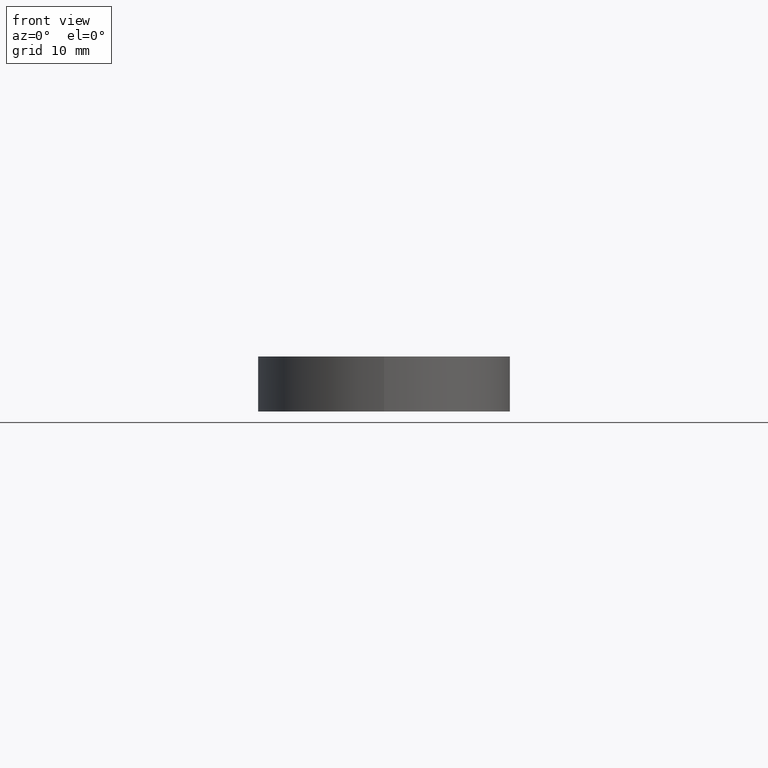
[diagram: clean part render]
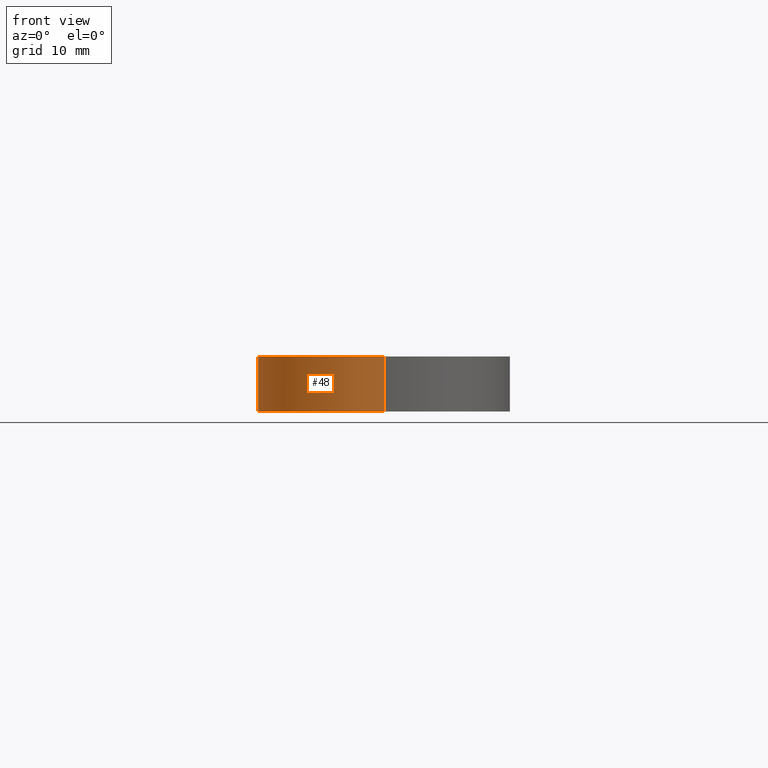
[diagram: same view with one face highlighted and labeled with its STEP entity id]
A machine part, front view. The second image highlights one B-rep face of the part: STEP entity #48.
In plain terms, the highlighted cylindrical surface (partial cylindrical patch) has radius 16 mm, axis along (0, 0, -1).
Its self-contained STEP definition (entity closure, byte-faithful):
#5 = DIRECTION ( 'NONE',  ( 1.000000000000000000, 0.000000000000000000, 0.000000000000000000 ) ) ;
#48 = ADVANCED_FACE ( 'NONE', ( #2033 ), #8019, .T. ) ;
#208 = CARTESIAN_POINT ( 'NONE',  ( -16.00000000000000000, -27.50000000000000355, 0.000000000000000000 ) ) ;
#254 = EDGE_LOOP ( 'NONE', ( #282, #1041, #4452, #4160 ) ) ;
#282 = ORIENTED_EDGE ( 'NONE', *, *, #3491, .F. ) ;
#519 = VERTEX_POINT ( 'NONE', #10348 ) ;
#887 = VECTOR ( 'NONE', #5650, 1000.000000000000000 ) ;
#1041 = ORIENTED_EDGE ( 'NONE', *, *, #7177, .F. ) ;
#1117 = EDGE_CURVE ( 'NONE', #7078, #8924, #8289, .T. ) ;
#1189 = CARTESIAN_POINT ( 'NONE',  ( 0.000000000000000000, -27.50000000000000355, 7.000000000000000000 ) ) ;
#1269 = VERTEX_POINT ( 'NONE', #4746 ) ;
#1451 = CARTESIAN_POINT ( 'NONE',  ( 0.000000000000000000, -27.50000000000000355, 7.000000000000000000 ) ) ;
#1469 = CIRCLE ( 'NONE', #2277, 16.00000000000000000 ) ;
#2033 = FACE_OUTER_BOUND ( 'NONE', #254, .T. ) ;
#2277 = AXIS2_PLACEMENT_3D ( 'NONE', #6386, #3163, #5 ) ;
#3134 = LINE ( 'NONE', #8884, #7845 ) ;
#3163 = DIRECTION ( 'NONE',  ( 0.000000000000000000, -0.000000000000000000, -1.000000000000000000 ) ) ;
#3259 = CARTESIAN_POINT ( 'NONE',  ( -16.00000000000000000, -27.50000000000000355, 7.000000000000000000 ) ) ;
#3491 = EDGE_CURVE ( 'NONE', #519, #1269, #3134, .T. ) ;
#3620 = DIRECTION ( 'NONE',  ( -1.000000000000000000, 0.000000000000000000, 0.000000000000000000 ) ) ;
#4102 = CIRCLE ( 'NONE', #10196, 16.00000000000000000 ) ;
#4160 = ORIENTED_EDGE ( 'NONE', *, *, #4768, .F. ) ;
#4452 = ORIENTED_EDGE ( 'NONE', *, *, #1117, .F. ) ;
#4746 = CARTESIAN_POINT ( 'NONE',  ( 0.000000000000000000, -43.50000000000000711, 0.000000000000000000 ) ) ;
#4768 = EDGE_CURVE ( 'NONE', #1269, #7078, #1469, .T. ) ;
#5473 = DIRECTION ( 'NONE',  ( -0.000000000000000000, 0.000000000000000000, -1.000000000000000000 ) ) ;
#5511 = CARTESIAN_POINT ( 'NONE',  ( -16.00000000000000000, -27.50000000000000355, 7.000000000000000000 ) ) ;
#5650 = DIRECTION ( 'NONE',  ( 0.000000000000000000, -0.000000000000000000, 1.000000000000000000 ) ) ;
#6386 = CARTESIAN_POINT ( 'NONE',  ( 0.000000000000000000, -27.50000000000000355, 0.000000000000000000 ) ) ;
#6888 = DIRECTION ( 'NONE',  ( -0.000000000000000000, 0.000000000000000000, -1.000000000000000000 ) ) ;
#7078 = VERTEX_POINT ( 'NONE', #208 ) ;
#7177 = EDGE_CURVE ( 'NONE', #8924, #519, #4102, .T. ) ;
#7845 = VECTOR ( 'NONE', #5473, 1000.000000000000000 ) ;
#8019 = CYLINDRICAL_SURFACE ( 'NONE', #8718, 16.00000000000000000 ) ;
#8289 = LINE ( 'NONE', #3259, #887 ) ;
#8718 = AXIS2_PLACEMENT_3D ( 'NONE', #1189, #6888, #3620 ) ;
#8763 = DIRECTION ( 'NONE',  ( 1.000000000000000000, 0.000000000000000000, 0.000000000000000000 ) ) ;
#8884 = CARTESIAN_POINT ( 'NONE',  ( 0.000000000000000000, -43.50000000000000711, 7.000000000000000000 ) ) ;
#8924 = VERTEX_POINT ( 'NONE', #5511 ) ;
#10196 = AXIS2_PLACEMENT_3D ( 'NONE', #1451, #10450, #8763 ) ;
#10348 = CARTESIAN_POINT ( 'NONE',  ( 0.000000000000000000, -43.50000000000000711, 7.000000000000000000 ) ) ;
#10450 = DIRECTION ( 'NONE',  ( -0.000000000000000000, 0.000000000000000000, 1.000000000000000000 ) ) ;